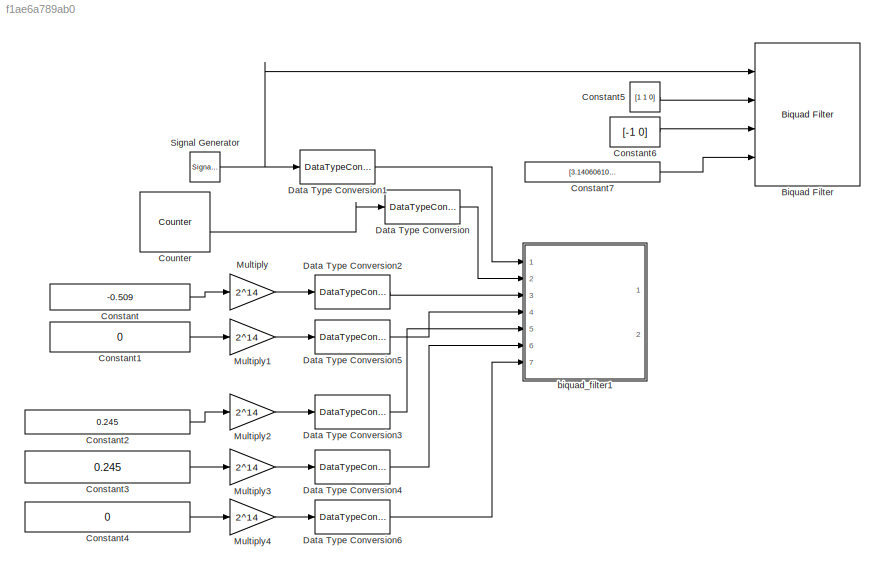
MODEL slx_f1ae6a789ab0
KIND model
CONFIG AbsTol = auto
CONFIG EnableMultiTasking = off
CONFIG FixedStep = 1e-8
CONFIG MaxStep = auto
CONFIG MinStep = auto
CONFIG RelTol = 1e-3
CONFIG SampleTimeConstraint = Unconstrained
CONFIG SolverName = FixedStepAuto
CONFIG StartTime = 0.0
CONFIG StopTime = 1e-3
BLOCK [Reference] Biquad Filter  REF=dsparch4/Biquad Filter
  Ports = [4, 1]
  SourceBlock = dsparch4/Biquad Filter
  SourceProductBaseCode = DS
  SourceType = Biquad Filter
  UserDataPersistent = on
BLOCK [Constant] Constant
  OutDataTypeStr = double
  Value = -0.509
BLOCK [Constant] Constant1
  OutDataTypeStr = Inherit: Inherit via back propagation
  Value = 0
BLOCK [Constant] Constant2
  OutDataTypeStr = double
  Value = 0.245
BLOCK [Constant] Constant3
  OutDataTypeStr = double
  Value = 0.245
BLOCK [Constant] Constant4
  OutDataTypeStr = Inherit: Inherit via back propagation
  Value = 0
BLOCK [Constant] Constant5
  OutDataTypeStr = double
  Value = [1 1 0]
BLOCK [Constant] Constant6
  OutDataTypeStr = double
  Value = [-1 0]
BLOCK [Constant] Constant7
  OutDataTypeStr = double
  Value = [3.140606106404424e-04 1]
BLOCK [Reference] Counter  REF=dspswit3/Counter
  Ports = [0, 2]
  SourceBlock = dspswit3/Counter
  SourceProductBaseCode = DS
  SourceType = Counter
BLOCK [DataTypeConversion] Data Type Conversion
  RndMeth = Floor
  SaturateOnIntegerOverflow = off
BLOCK [DataTypeConversion] Data Type Conversion1
  OutDataTypeStr = int16
  RndMeth = Floor
  SaturateOnIntegerOverflow = off
BLOCK [DataTypeConversion] Data Type Conversion2
  RndMeth = Floor
  SaturateOnIntegerOverflow = off
BLOCK [DataTypeConversion] Data Type Conversion3
  RndMeth = Floor
  SaturateOnIntegerOverflow = off
BLOCK [DataTypeConversion] Data Type Conversion4
  RndMeth = Floor
  SaturateOnIntegerOverflow = off
BLOCK [DataTypeConversion] Data Type Conversion5
  RndMeth = Floor
  SaturateOnIntegerOverflow = off
BLOCK [DataTypeConversion] Data Type Conversion6
  RndMeth = Floor
  SaturateOnIntegerOverflow = off
BLOCK [Gain] Multiply
  Gain = 2^14
BLOCK [Gain] Multiply1
  Gain = 2^14
BLOCK [Gain] Multiply2
  Gain = 2^14
BLOCK [Gain] Multiply3
  Gain = 2^14
BLOCK [Gain] Multiply4
  Gain = 2^14
BLOCK [SignalGenerator] Signal Generator
  Amplitude = 4096
  Frequency = 10000
  Ports = [0, 1]
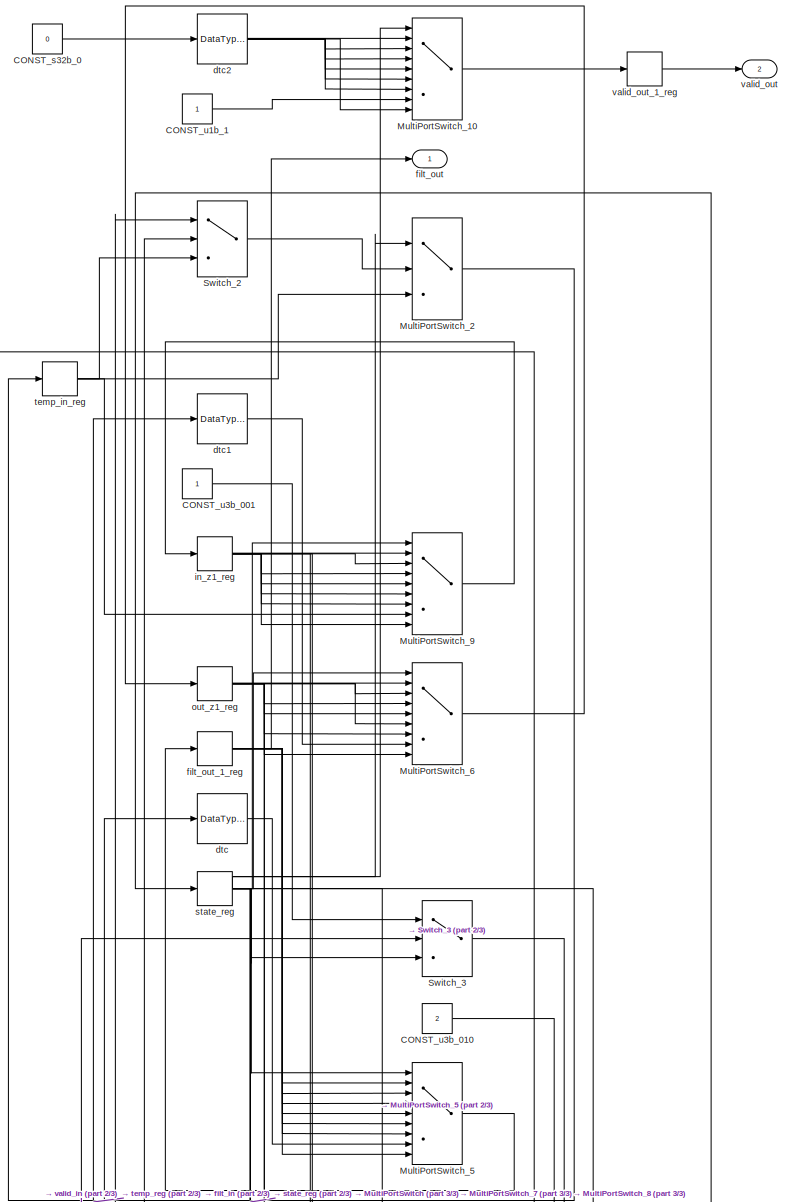
[diagram: biquad_filter1 - part 1/3, top center region]
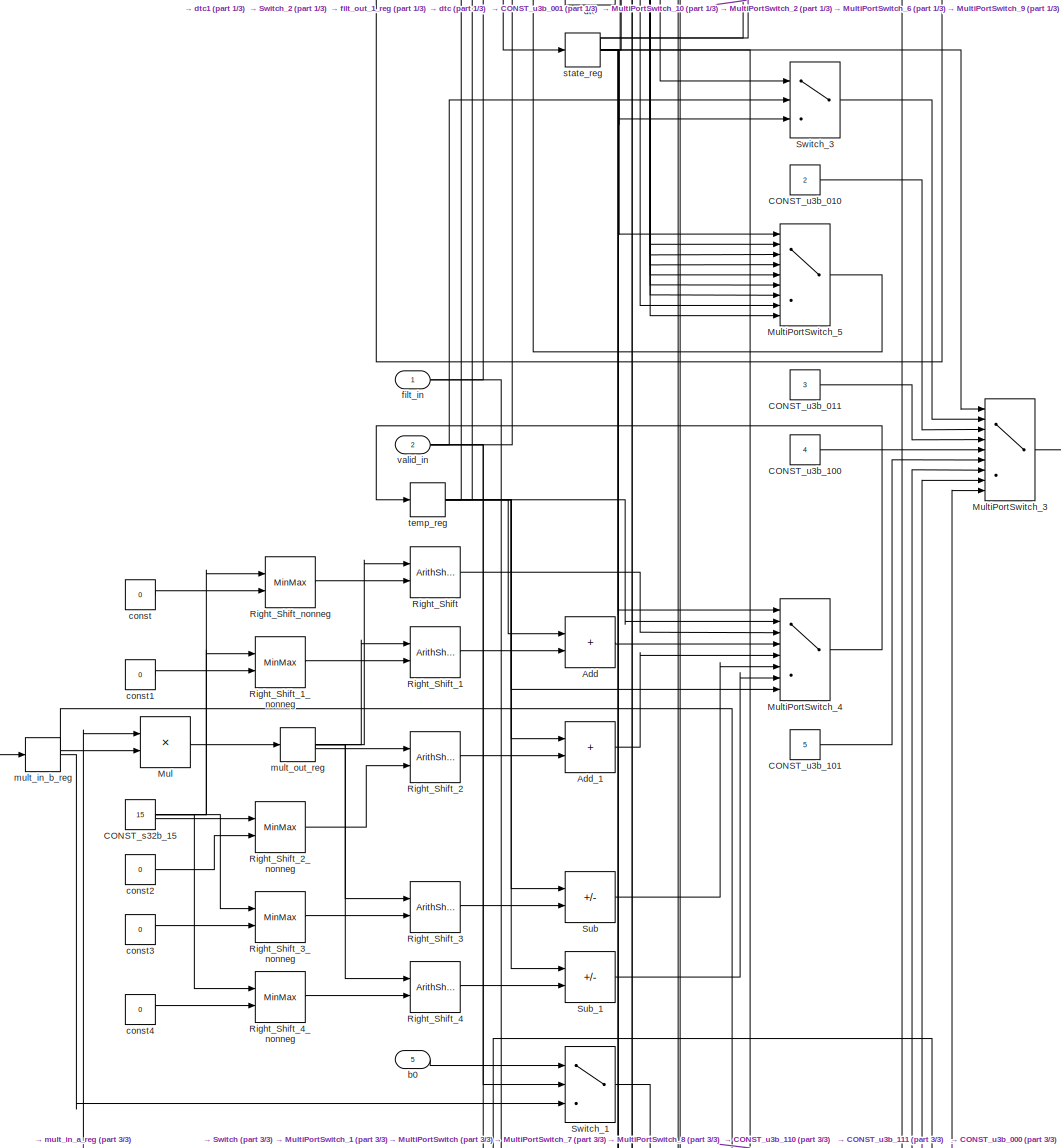
[diagram: biquad_filter1 - part 2/3, full width, middle band]
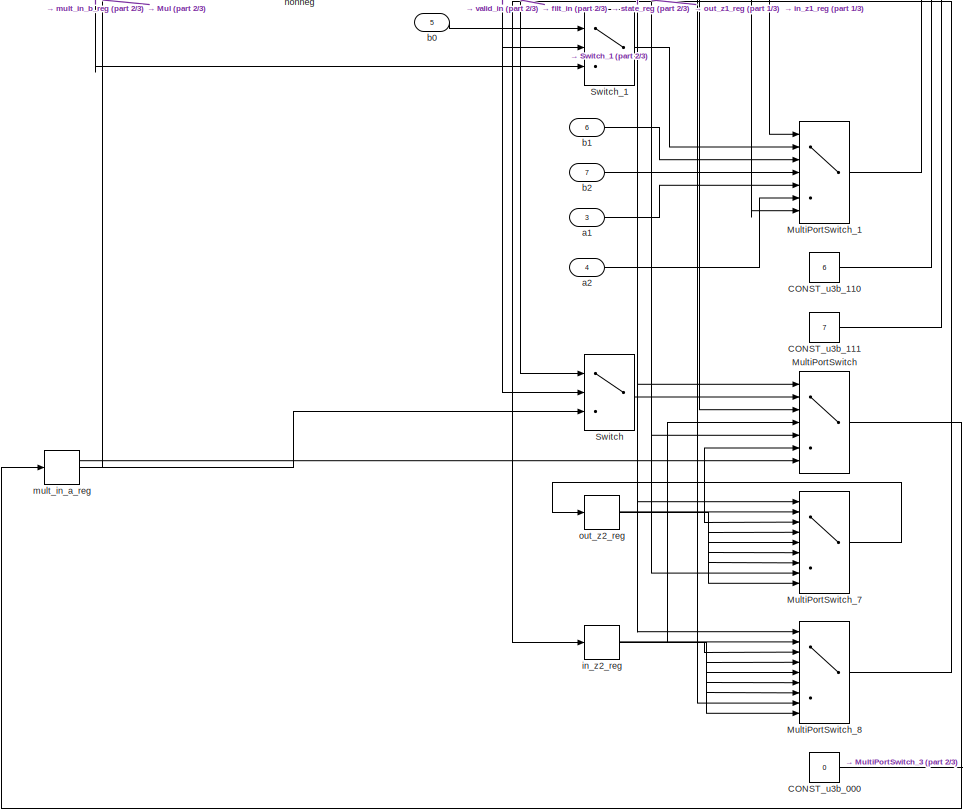
[diagram: biquad_filter1 - part 3/3, full width, bottom band]
BLOCK [SubSystem] biquad_filter1
  Ports = [7, 2]
  RequestExecContextInheritance = off
BLOCK [Sum] biquad_filter1/Add
  AccumDataTypeStr = int32
  IconShape = rectangular
  OutDataTypeStr = int32
  Ports = [2, 1]
  SampleTime = -1
BLOCK [Sum] biquad_filter1/Add_1
  AccumDataTypeStr = int32
  IconShape = rectangular
  OutDataTypeStr = int32
  Ports = [2, 1]
  SampleTime = -1
BLOCK [Constant] biquad_filter1/CONST_s32b_0
  OutDataTypeStr = int32
  SampleTime = -1
  Value = 0
BLOCK [Constant] biquad_filter1/CONST_s32b_15
  OutDataTypeStr = int32
  SampleTime = -1
  Value = 15
BLOCK [Constant] biquad_filter1/CONST_u1b_1
  OutDataTypeStr = fixdt(0, 1, 0)
  SampleTime = -1
BLOCK [Constant] biquad_filter1/CONST_u3b_000
  OutDataTypeStr = fixdt(0, 3, 0)
  SampleTime = -1
  Value = 0
BLOCK [Constant] biquad_filter1/CONST_u3b_001
  OutDataTypeStr = fixdt(0, 3, 0)
  SampleTime = -1
BLOCK [Constant] biquad_filter1/CONST_u3b_010
  OutDataTypeStr = fixdt(0, 3, 0)
  SampleTime = -1
  Value = 2
BLOCK [Constant] biquad_filter1/CONST_u3b_011
  OutDataTypeStr = fixdt(0, 3, 0)
  SampleTime = -1
  Value = 3
BLOCK [Constant] biquad_filter1/CONST_u3b_100
  OutDataTypeStr = fixdt(0, 3, 0)
  SampleTime = -1
  Value = 4
BLOCK [Constant] biquad_filter1/CONST_u3b_101
  OutDataTypeStr = fixdt(0, 3, 0)
  SampleTime = -1
  Value = 5
BLOCK [Constant] biquad_filter1/CONST_u3b_110
  OutDataTypeStr = fixdt(0, 3, 0)
  SampleTime = -1
  Value = 6
BLOCK [Constant] biquad_filter1/CONST_u3b_111
  OutDataTypeStr = fixdt(0, 3, 0)
  SampleTime = -1
  Value = 7
BLOCK [Product] biquad_filter1/Mul
  Inputs = **
  OutDataTypeStr = int32
  Ports = [2, 1]
  SampleTime = -1
BLOCK [MultiPortSwitch] biquad_filter1/MultiPortSwitch
  DataPortOrder = Zero-based contiguous
  DiagnosticForDefault = None
  InputSameDT = off
  Inputs = 6
  OutDataTypeStr = int16
  Ports = [7, 1]
  SampleTime = -1
  SaturateOnIntegerOverflow = off
  zeroidx = on
BLOCK [MultiPortSwitch] biquad_filter1/MultiPortSwitch_1
  DataPortOrder = Zero-based contiguous
  DiagnosticForDefault = None
  InputSameDT = off
  Inputs = 6
  OutDataTypeStr = int16
  Ports = [7, 1]
  SampleTime = -1
  SaturateOnIntegerOverflow = off
  zeroidx = on
BLOCK [MultiPortSwitch] biquad_filter1/MultiPortSwitch_10
  DataPortOrder = Zero-based contiguous
  DiagnosticForDefault = None
  InputSameDT = off
  Inputs = 8
  OutDataTypeStr = fixdt(0, 1, 0)
  Ports = [9, 1]
  SampleTime = -1
  SaturateOnIntegerOverflow = off
  zeroidx = on
BLOCK [MultiPortSwitch] biquad_filter1/MultiPortSwitch_2
  DataPortOrder = Zero-based contiguous
  DiagnosticForDefault = None
  InputSameDT = off
  Inputs = 2
  OutDataTypeStr = int16
  Ports = [3, 1]
  SampleTime = -1
  SaturateOnIntegerOverflow = off
  zeroidx = on
BLOCK [MultiPortSwitch] biquad_filter1/MultiPortSwitch_3
  DataPortOrder = Zero-based contiguous
  DiagnosticForDefault = None
  InputSameDT = off
  Inputs = 8
  OutDataTypeStr = fixdt(0, 3, 0)
  Ports = [9, 1]
  SampleTime = -1
  SaturateOnIntegerOverflow = off
  zeroidx = on
BLOCK [MultiPortSwitch] biquad_filter1/MultiPortSwitch_4
  DataPortOrder = Zero-based contiguous
  DiagnosticForDefault = None
  InputSameDT = off
  Inputs = 7
  OutDataTypeStr = int32
  Ports = [8, 1]
  SampleTime = -1
  SaturateOnIntegerOverflow = off
  zeroidx = on
BLOCK [MultiPortSwitch] biquad_filter1/MultiPortSwitch_5
  DataPortOrder = Zero-based contiguous
  DiagnosticForDefault = None
  InputSameDT = off
  Inputs = 8
  OutDataTypeStr = int16
  Ports = [9, 1]
  SampleTime = -1
  SaturateOnIntegerOverflow = off
  zeroidx = on
BLOCK [MultiPortSwitch] biquad_filter1/MultiPortSwitch_6
  DataPortOrder = Zero-based contiguous
  DiagnosticForDefault = None
  InputSameDT = off
  Inputs = 8
  OutDataTypeStr = int16
  Ports = [9, 1]
  SampleTime = -1
  SaturateOnIntegerOverflow = off
  zeroidx = on
BLOCK [MultiPortSwitch] biquad_filter1/MultiPortSwitch_7
  DataPortOrder = Zero-based contiguous
  DiagnosticForDefault = None
  InputSameDT = off
  Inputs = 8
  OutDataTypeStr = int16
  Ports = [9, 1]
  SampleTime = -1
  SaturateOnIntegerOverflow = off
  zeroidx = on
BLOCK [MultiPortSwitch] biquad_filter1/MultiPortSwitch_8
  DataPortOrder = Zero-based contiguous
  DiagnosticForDefault = None
  InputSameDT = off
  Inputs = 8
  OutDataTypeStr = int16
  Ports = [9, 1]
  SampleTime = -1
  SaturateOnIntegerOverflow = off
  zeroidx = on
BLOCK [MultiPortSwitch] biquad_filter1/MultiPortSwitch_9
  DataPortOrder = Zero-based contiguous
  DiagnosticForDefault = None
  InputSameDT = off
  Inputs = 8
  OutDataTypeStr = int16
  Ports = [9, 1]
  SampleTime = -1
  SaturateOnIntegerOverflow = off
  zeroidx = on
BLOCK [ArithShift] biquad_filter1/Right_Shift
  BitShiftDirection = Right
  BitShiftNumberSource = Input port
  InputPortMap = u0,p1
  Ports = [2, 1]
BLOCK [ArithShift] biquad_filter1/Right_Shift_1
  BitShiftDirection = Right
  BitShiftNumberSource = Input port
  InputPortMap = u0,p1
  Ports = [2, 1]
BLOCK [MinMax] biquad_filter1/Right_Shift_1_nonneg
  Function = max
  Inputs = 2
  Ports = [2, 1]
BLOCK [ArithShift] biquad_filter1/Right_Shift_2
  BitShiftDirection = Right
  BitShiftNumberSource = Input port
  InputPortMap = u0,p1
  Ports = [2, 1]
BLOCK [MinMax] biquad_filter1/Right_Shift_2_nonneg
  Function = max
  Inputs = 2
  Ports = [2, 1]
BLOCK [ArithShift] biquad_filter1/Right_Shift_3
  BitShiftDirection = Right
  BitShiftNumberSource = Input port
  InputPortMap = u0,p1
  Ports = [2, 1]
BLOCK [MinMax] biquad_filter1/Right_Shift_3_nonneg
  Function = max
  Inputs = 2
  Ports = [2, 1]
BLOCK [ArithShift] biquad_filter1/Right_Shift_4
  BitShiftDirection = Right
  BitShiftNumberSource = Input port
  InputPortMap = u0,p1
  Ports = [2, 1]
BLOCK [MinMax] biquad_filter1/Right_Shift_4_nonneg
  Function = max
  Inputs = 2
  Ports = [2, 1]
BLOCK [MinMax] biquad_filter1/Right_Shift_nonneg
  Function = max
  Inputs = 2
  Ports = [2, 1]
BLOCK [Sum] biquad_filter1/Sub
  AccumDataTypeStr = int32
  IconShape = rectangular
  Inputs = +-
  OutDataTypeStr = int32
  Ports = [2, 1]
  SampleTime = -1
BLOCK [Sum] biquad_filter1/Sub_1
  AccumDataTypeStr = int32
  IconShape = rectangular
  Inputs = +-
  OutDataTypeStr = int32
  Ports = [2, 1]
  SampleTime = -1
BLOCK [Switch] biquad_filter1/Switch
  Criteria = u2 ~= 0
  InputSameDT = off
  OutDataTypeStr = int16
  SampleTime = -1
  SaturateOnIntegerOverflow = off
  Threshold = double(0)
BLOCK [Switch] biquad_filter1/Switch_1
  Criteria = u2 ~= 0
  InputSameDT = off
  OutDataTypeStr = int16
  SampleTime = -1
  SaturateOnIntegerOverflow = off
  Threshold = double(0)
BLOCK [Switch] biquad_filter1/Switch_2
  Criteria = u2 ~= 0
  InputSameDT = off
  OutDataTypeStr = int16
  SampleTime = -1
  SaturateOnIntegerOverflow = off
  Threshold = double(0)
BLOCK [Switch] biquad_filter1/Switch_3
  Criteria = u2 ~= 0
  InputSameDT = off
  OutDataTypeStr = fixdt(0, 3, 0)
  SampleTime = -1
  SaturateOnIntegerOverflow = off
  Threshold = double(0)
BLOCK [Inport] biquad_filter1/a1
  OutDataTypeStr = int16
  Port = 3
  SampleTime = -1
BLOCK [Inport] biquad_filter1/a2
  OutDataTypeStr = int16
  Port = 4
  SampleTime = -1
BLOCK [Inport] biquad_filter1/b0
  OutDataTypeStr = int16
  Port = 5
  SampleTime = -1
BLOCK [Inport] biquad_filter1/b1
  OutDataTypeStr = int16
  Port = 6
  SampleTime = -1
BLOCK [Inport] biquad_filter1/b2
  OutDataTypeStr = int16
  Port = 7
  SampleTime = -1
BLOCK [Constant] biquad_filter1/const
  OutDataTypeStr = int32
  SampleTime = -1
  Value = 0
BLOCK [Constant] biquad_filter1/const1
  OutDataTypeStr = int32
  SampleTime = -1
  Value = 0
BLOCK [Constant] biquad_filter1/const2
  OutDataTypeStr = int32
  SampleTime = -1
  Value = 0
BLOCK [Constant] biquad_filter1/const3
  OutDataTypeStr = int32
  SampleTime = -1
  Value = 0
BLOCK [Constant] biquad_filter1/const4
  OutDataTypeStr = int32
  SampleTime = -1
  Value = 0
BLOCK [DataTypeConversion] biquad_filter1/dtc
  OutDataTypeStr = int16
  RndMeth = Floor
  SampleTime = -1
  SaturateOnIntegerOverflow = off
BLOCK [DataTypeConversion] biquad_filter1/dtc1
  OutDataTypeStr = int16
  RndMeth = Floor
  SampleTime = -1
  SaturateOnIntegerOverflow = off
BLOCK [DataTypeConversion] biquad_filter1/dtc2
  OutDataTypeStr = fixdt(0, 1, 0)
  RndMeth = Floor
  SampleTime = -1
  SaturateOnIntegerOverflow = off
BLOCK [Inport] biquad_filter1/filt_in
  OutDataTypeStr = int16
  SampleTime = -1
BLOCK [Outport] biquad_filter1/filt_out
  OutDataTypeStr = int16
  SampleTime = -1
BLOCK [Delay] biquad_filter1/filt_out_1_reg
  DelayLength = double(1)
  InitialCondition = 0
  InputPortMap = u0
  Ports = [1, 1]
  SampleTime = -1
BLOCK [Delay] biquad_filter1/in_z1_reg
  DelayLength = double(1)
  InitialCondition = 0
  InputPortMap = u0
  Ports = [1, 1]
  SampleTime = -1
BLOCK [Delay] biquad_filter1/in_z2_reg
  DelayLength = double(1)
  InitialCondition = 0
  InputPortMap = u0
  Ports = [1, 1]
  SampleTime = -1
BLOCK [Delay] biquad_filter1/mult_in_a_reg
  DelayLength = double(1)
  InitialCondition = 0
  InputPortMap = u0
  Ports = [1, 1]
  SampleTime = -1
BLOCK [Delay] biquad_filter1/mult_in_b_reg
  DelayLength = double(1)
  InitialCondition = 0
  InputPortMap = u0
  Ports = [1, 1]
  SampleTime = -1
BLOCK [Delay] biquad_filter1/mult_out_reg
  DelayLength = double(1)
  InitialCondition = 0
  InputPortMap = u0
  Ports = [1, 1]
  SampleTime = -1
BLOCK [Delay] biquad_filter1/out_z1_reg
  DelayLength = double(1)
  InitialCondition = 0
  InputPortMap = u0
  Ports = [1, 1]
  SampleTime = -1
BLOCK [Delay] biquad_filter1/out_z2_reg
  DelayLength = double(1)
  InitialCondition = 0
  InputPortMap = u0
  Ports = [1, 1]
  SampleTime = -1
BLOCK [Delay] biquad_filter1/state_reg
  DelayLength = double(1)
  InitialCondition = 0
  InputPortMap = u0
  Ports = [1, 1]
  SampleTime = -1
BLOCK [Delay] biquad_filter1/temp_in_reg
  DelayLength = double(1)
  InitialCondition = 0
  InputPortMap = u0
  Ports = [1, 1]
  SampleTime = -1
BLOCK [Delay] biquad_filter1/temp_reg
  DelayLength = double(1)
  InitialCondition = 0
  InputPortMap = u0
  Ports = [1, 1]
  SampleTime = -1
BLOCK [Inport] biquad_filter1/valid_in
  OutDataTypeStr = fixdt(0, 1, 0)
  Port = 2
  SampleTime = -1
BLOCK [Outport] biquad_filter1/valid_out
  OutDataTypeStr = fixdt(0, 1, 0)
  Port = 2
  SampleTime = -1
BLOCK [Delay] biquad_filter1/valid_out_1_reg
  DelayLength = double(1)
  InitialCondition = 0
  InputPortMap = u0
  Ports = [1, 1]
  SampleTime = -1
LINE Constant1:1 -> Multiply1:1
LINE Constant2:1 -> Multiply2:1
LINE Constant3:1 -> Multiply3:1
LINE Constant4:1 -> Multiply4:1
LINE Constant5:1 -> Biquad Filter:2
LINE Constant6:1 -> Biquad Filter:3
LINE Constant7:1 -> Biquad Filter:4
LINE Constant:1 -> Multiply:1
LINE Counter:2 -> Data Type Conversion:1
LINE Data Type Conversion1:1 -> biquad_filter1:1
LINE Data Type Conversion2:1 -> biquad_filter1:3
LINE Data Type Conversion3:1 -> biquad_filter1:5
LINE Data Type Conversion4:1 -> biquad_filter1:6
LINE Data Type Conversion5:1 -> biquad_filter1:4
LINE Data Type Conversion6:1 -> biquad_filter1:7
LINE Data Type Conversion:1 -> biquad_filter1:2
LINE Multiply1:1 -> Data Type Conversion5:1
LINE Multiply2:1 -> Data Type Conversion3:1
LINE Multiply3:1 -> Data Type Conversion4:1
LINE Multiply4:1 -> Data Type Conversion6:1
LINE Multiply:1 -> Data Type Conversion2:1
NET Signal Generator:1 -> Biquad Filter:1, Data Type Conversion1:1
LINE biquad_filter1/Add:1 -> biquad_filter1/MultiPortSwitch_4:4
LINE biquad_filter1/Add_1:1 -> biquad_filter1/MultiPortSwitch_4:5
LINE biquad_filter1/CONST_s32b_0:1 -> biquad_filter1/dtc2:1
NET biquad_filter1/CONST_s32b_15:1 -> biquad_filter1/Right_Shift_1_nonneg:1, biquad_filter1/Right_Shift_2_nonneg:1, biquad_filter1/Right_Shift_3_nonneg:1, biquad_filter1/Right_Shift_4_nonneg:1, biquad_filter1/Right_Shift_nonneg:1
LINE biquad_filter1/CONST_u1b_1:1 -> biquad_filter1/MultiPortSwitch_10:8
LINE biquad_filter1/CONST_u3b_000:1 -> biquad_filter1/MultiPortSwitch_3:9
LINE biquad_filter1/CONST_u3b_001:1 -> biquad_filter1/Switch_3:1
LINE biquad_filter1/CONST_u3b_010:1 -> biquad_filter1/MultiPortSwitch_3:3
LINE biquad_filter1/CONST_u3b_011:1 -> biquad_filter1/MultiPortSwitch_3:4
LINE biquad_filter1/CONST_u3b_100:1 -> biquad_filter1/MultiPortSwitch_3:5
LINE biquad_filter1/CONST_u3b_101:1 -> biquad_filter1/MultiPortSwitch_3:6
LINE biquad_filter1/CONST_u3b_110:1 -> biquad_filter1/MultiPortSwitch_3:7
LINE biquad_filter1/CONST_u3b_111:1 -> biquad_filter1/MultiPortSwitch_3:8
LINE biquad_filter1/Mul:1 -> biquad_filter1/mult_out_reg:1
LINE biquad_filter1/MultiPortSwitch:1 -> biquad_filter1/mult_in_a_reg:1
LINE biquad_filter1/MultiPortSwitch_10:1 -> biquad_filter1/valid_out_1_reg:1
LINE biquad_filter1/MultiPortSwitch_1:1 -> biquad_filter1/mult_in_b_reg:1
LINE biquad_filter1/MultiPortSwitch_2:1 -> biquad_filter1/temp_in_reg:1
LINE biquad_filter1/MultiPortSwitch_3:1 -> biquad_filter1/state_reg:1
LINE biquad_filter1/MultiPortSwitch_4:1 -> biquad_filter1/temp_reg:1
LINE biquad_filter1/MultiPortSwitch_5:1 -> biquad_filter1/filt_out_1_reg:1
LINE biquad_filter1/MultiPortSwitch_6:1 -> biquad_filter1/out_z1_reg:1
LINE biquad_filter1/MultiPortSwitch_7:1 -> biquad_filter1/out_z2_reg:1
LINE biquad_filter1/MultiPortSwitch_8:1 -> biquad_filter1/in_z2_reg:1
LINE biquad_filter1/MultiPortSwitch_9:1 -> biquad_filter1/in_z1_reg:1
LINE biquad_filter1/Right_Shift:1 -> biquad_filter1/MultiPortSwitch_4:3
LINE biquad_filter1/Right_Shift_1:1 -> biquad_filter1/Add:2
LINE biquad_filter1/Right_Shift_1_nonneg:1 -> biquad_filter1/Right_Shift_1:2
LINE biquad_filter1/Right_Shift_2:1 -> biquad_filter1/Add_1:2
LINE biquad_filter1/Right_Shift_2_nonneg:1 -> biquad_filter1/Right_Shift_2:2
LINE biquad_filter1/Right_Shift_3:1 -> biquad_filter1/Sub:2
LINE biquad_filter1/Right_Shift_3_nonneg:1 -> biquad_filter1/Right_Shift_3:2
LINE biquad_filter1/Right_Shift_4:1 -> biquad_filter1/Sub_1:2
LINE biquad_filter1/Right_Shift_4_nonneg:1 -> biquad_filter1/Right_Shift_4:2
LINE biquad_filter1/Right_Shift_nonneg:1 -> biquad_filter1/Right_Shift:2
LINE biquad_filter1/Sub:1 -> biquad_filter1/MultiPortSwitch_4:6
LINE biquad_filter1/Sub_1:1 -> biquad_filter1/MultiPortSwitch_4:7
LINE biquad_filter1/Switch:1 -> biquad_filter1/MultiPortSwitch:2
LINE biquad_filter1/Switch_1:1 -> biquad_filter1/MultiPortSwitch_1:2
LINE biquad_filter1/Switch_2:1 -> biquad_filter1/MultiPortSwitch_2:2
LINE biquad_filter1/Switch_3:1 -> biquad_filter1/MultiPortSwitch_3:2
LINE biquad_filter1/a1:1 -> biquad_filter1/MultiPortSwitch_1:5
LINE biquad_filter1/a2:1 -> biquad_filter1/MultiPortSwitch_1:6
LINE biquad_filter1/b0:1 -> biquad_filter1/Switch_1:1
LINE biquad_filter1/b1:1 -> biquad_filter1/MultiPortSwitch_1:3
LINE biquad_filter1/b2:1 -> biquad_filter1/MultiPortSwitch_1:4
LINE biquad_filter1/const1:1 -> biquad_filter1/Right_Shift_1_nonneg:2
LINE biquad_filter1/const2:1 -> biquad_filter1/Right_Shift_2_nonneg:2
LINE biquad_filter1/const3:1 -> biquad_filter1/Right_Shift_3_nonneg:2
LINE biquad_filter1/const4:1 -> biquad_filter1/Right_Shift_4_nonneg:2
LINE biquad_filter1/const:1 -> biquad_filter1/Right_Shift_nonneg:2
LINE biquad_filter1/dtc1:1 -> biquad_filter1/MultiPortSwitch_6:8
NET biquad_filter1/dtc2:1 -> biquad_filter1/MultiPortSwitch_10:2, biquad_filter1/MultiPortSwitch_10:3, biquad_filter1/MultiPortSwitch_10:4, biquad_filter1/MultiPortSwitch_10:5, biquad_filter1/MultiPortSwitch_10:6, biquad_filter1/MultiPortSwitch_10:7, biquad_filter1/MultiPortSwitch_10:9
LINE biquad_filter1/dtc:1 -> biquad_filter1/MultiPortSwitch_5:8
NET biquad_filter1/filt_in:1 -> biquad_filter1/Switch:1, biquad_filter1/Switch_2:1
NET biquad_filter1/filt_out_1_reg:1 -> biquad_filter1/MultiPortSwitch_5:2, biquad_filter1/MultiPortSwitch_5:3, biquad_filter1/MultiPortSwitch_5:4, biquad_filter1/MultiPortSwitch_5:5, biquad_filter1/MultiPortSwitch_5:6, biquad_filter1/MultiPortSwitch_5:7, biquad_filter1/MultiPortSwitch_5:9, biquad_filter1/filt_out:1
NET biquad_filter1/in_z1_reg:1 -> biquad_filter1/MultiPortSwitch:3, biquad_filter1/MultiPortSwitch_8:8, biquad_filter1/MultiPortSwitch_9:2, biquad_filter1/MultiPortSwitch_9:3, biquad_filter1/MultiPortSwitch_9:4, biquad_filter1/MultiPortSwitch_9:5, biquad_filter1/MultiPortSwitch_9:6, biquad_filter1/MultiPortSwitch_9:7, biquad_filter1/MultiPortSwitch_9:9
NET biquad_filter1/in_z2_reg:1 -> biquad_filter1/MultiPortSwitch:4, biquad_filter1/MultiPortSwitch_8:2, biquad_filter1/MultiPortSwitch_8:3, biquad_filter1/MultiPortSwitch_8:4, biquad_filter1/MultiPortSwitch_8:5, biquad_filter1/MultiPortSwitch_8:6, biquad_filter1/MultiPortSwitch_8:7, biquad_filter1/MultiPortSwitch_8:9
NET biquad_filter1/mult_in_a_reg:1 -> biquad_filter1/Mul:1, biquad_filter1/MultiPortSwitch:7, biquad_filter1/Switch:3
NET biquad_filter1/mult_in_b_reg:1 -> biquad_filter1/Mul:2, biquad_filter1/MultiPortSwitch_1:7, biquad_filter1/Switch_1:3
NET biquad_filter1/mult_out_reg:1 -> biquad_filter1/Right_Shift:1, biquad_filter1/Right_Shift_1:1, biquad_filter1/Right_Shift_2:1, biquad_filter1/Right_Shift_3:1, biquad_filter1/Right_Shift_4:1
NET biquad_filter1/out_z1_reg:1 -> biquad_filter1/MultiPortSwitch:5, biquad_filter1/MultiPortSwitch_6:2, biquad_filter1/MultiPortSwitch_6:3, biquad_filter1/MultiPortSwitch_6:4, biquad_filter1/MultiPortSwitch_6:5, biquad_filter1/MultiPortSwitch_6:6, biquad_filter1/MultiPortSwitch_6:7, biquad_filter1/MultiPortSwitch_6:9, biquad_filter1/MultiPortSwitch_7:8
NET biquad_filter1/out_z2_reg:1 -> biquad_filter1/MultiPortSwitch:6, biquad_filter1/MultiPortSwitch_7:2, biquad_filter1/MultiPortSwitch_7:3, biquad_filter1/MultiPortSwitch_7:4, biquad_filter1/MultiPortSwitch_7:5, biquad_filter1/MultiPortSwitch_7:6, biquad_filter1/MultiPortSwitch_7:7, biquad_filter1/MultiPortSwitch_7:9
NET biquad_filter1/state_reg:1 -> biquad_filter1/MultiPortSwitch:1, biquad_filter1/MultiPortSwitch_10:1, biquad_filter1/MultiPortSwitch_1:1, biquad_filter1/MultiPortSwitch_2:1, biquad_filter1/MultiPortSwitch_3:1, biquad_filter1/MultiPortSwitch_4:1, biquad_filter1/MultiPortSwitch_5:1, biquad_filter1/MultiPortSwitch_6:1, biquad_filter1/MultiPortSwitch_7:1, biquad_filter1/MultiPortSwitch_8:1, biquad_filter1/MultiPortSwitch_9:1, biquad_filter1/Switch_3:3
NET biquad_filter1/temp_in_reg:1 -> biquad_filter1/MultiPortSwitch_2:3, biquad_filter1/MultiPortSwitch_9:8, biquad_filter1/Switch_2:3
NET biquad_filter1/temp_reg:1 -> biquad_filter1/Add:1, biquad_filter1/Add_1:1, biquad_filter1/MultiPortSwitch_4:2, biquad_filter1/MultiPortSwitch_4:8, biquad_filter1/Sub:1, biquad_filter1/Sub_1:1, biquad_filter1/dtc1:1, biquad_filter1/dtc:1
NET biquad_filter1/valid_in:1 -> biquad_filter1/Switch:2, biquad_filter1/Switch_1:2, biquad_filter1/Switch_2:2, biquad_filter1/Switch_3:2
LINE biquad_filter1/valid_out_1_reg:1 -> biquad_filter1/valid_out:1
note: NET lines group one-source signal fan-out (src -> all destinations, sorted); 1:1 wires keep LINE
